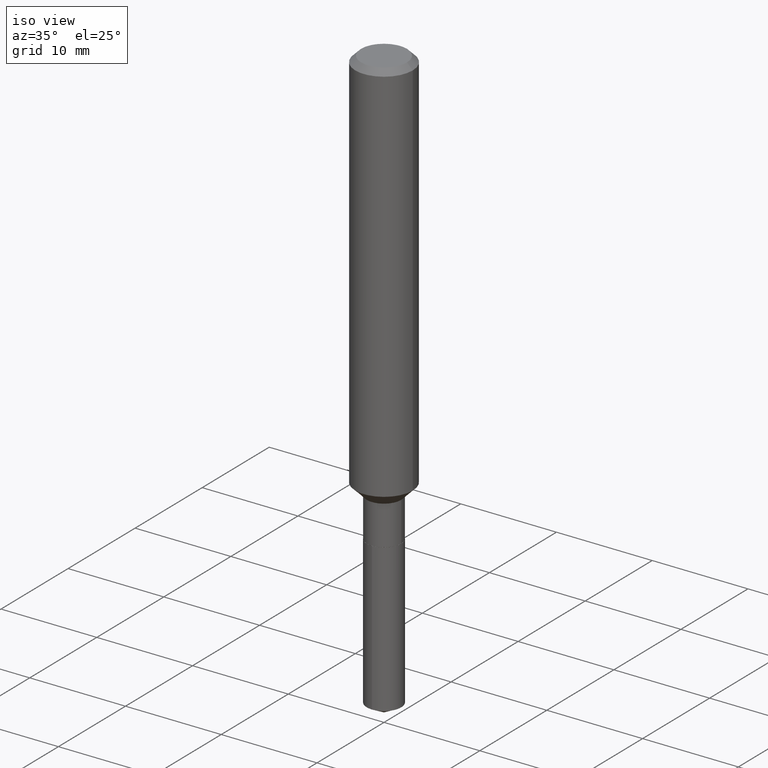
[diagram: clean part render]
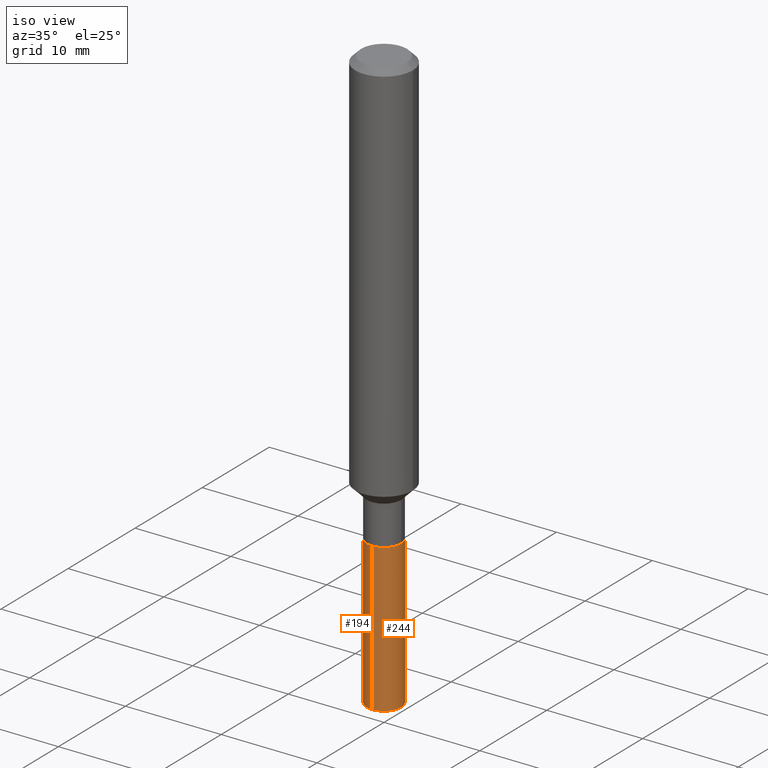
[diagram: same view with one multi-face feature highlighted, each face labeled with its STEP entity id]
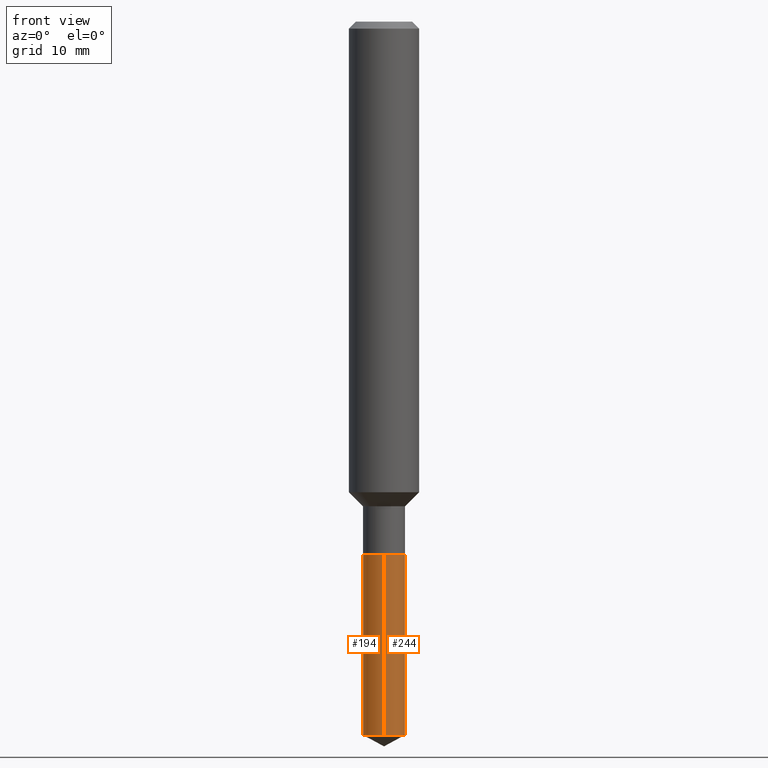
[diagram: same view with one multi-face feature highlighted, each face labeled with its STEP entity id]
A machine part, iso view. The highlighted faces form ONE feature: a constant-radius fillet chain: 2 tangent blend faces with common blend radius 1.7996 mm. The faces share edges in the B-rep.
A second angle (front view) of the same feature is appended — it is thin or edge-on in the first view.
Their STEP definitions:
[1] entity #194 (Cylinder):
#9 = AXIS2_PLACEMENT_3D ( 'NONE', #406, #355, #89 ) ;
#23 = CARTESIAN_POINT ( 'NONE',  ( 5.034195282860748359E-16, 0.07084999999999373743, -1.795200000000000129 ) ) ;
#46 = DIRECTION ( 'NONE',  ( -6.982962677686266711E-15, -1.000000000000000000, 3.855819327684210983E-15 ) ) ;
#66 = EDGE_LOOP ( 'NONE', ( #350, #88, #113, #457 ) ) ;
#85 = EDGE_CURVE ( 'NONE', #164, #326, #477, .T. ) ;
#86 = CARTESIAN_POINT ( 'NONE',  ( -4.947429057140280790E-16, -0.07085000000000626907, -1.795199999999999463 ) ) ;
#88 = ORIENTED_EDGE ( 'NONE', *, *, #129, .T. ) ;
#89 = DIRECTION ( 'NONE',  ( -6.982962677686266711E-15, -1.000000000000000000, 3.855819327684210194E-15 ) ) ;
#106 = VERTEX_POINT ( 'NONE', #300 ) ;
#113 = ORIENTED_EDGE ( 'NONE', *, *, #145, .T. ) ;
#114 = VECTOR ( 'NONE', #269, 39.37007874015748143 ) ;
#129 = EDGE_CURVE ( 'NONE', #106, #364, #411, .T. ) ;
#145 = EDGE_CURVE ( 'NONE', #364, #326, #191, .T. ) ;
#149 = AXIS2_PLACEMENT_3D ( 'NONE', #309, #459, #46 ) ;
#151 = LINE ( 'NONE', #23, #249 ) ;
#155 = DIRECTION ( 'NONE',  ( -6.982962677686265133E-15, -1.000000000000000000, 3.855819327684210983E-15 ) ) ;
#162 = CYLINDRICAL_SURFACE ( 'NONE', #149, 0.07084999999999999631 ) ;
#164 = VERTEX_POINT ( 'NONE', #235 ) ;
#191 = LINE ( 'NONE', #86, #114 ) ;
#194 = ADVANCED_FACE ( 'NONE', ( #195 ), #162, .T. ) ;
#195 = FACE_OUTER_BOUND ( 'NONE', #66, .T. ) ;
#223 = DIRECTION ( 'NONE',  ( -2.434622913591768553E-29, 3.507013274346718220E-15, 1.000000000000000000 ) ) ;
#235 = CARTESIAN_POINT ( 'NONE',  ( 5.034195282860897256E-16, 0.07084999999999372355, -1.795200000000000129 ) ) ;
#249 = VECTOR ( 'NONE', #223, 39.37007874015748143 ) ;
#257 = CARTESIAN_POINT ( 'NONE',  ( 4.390105600863556886E-29, -6.267907299491213327E-15, -1.795199999999999685 ) ) ;
#269 = DIRECTION ( 'NONE',  ( -2.434622913591768553E-29, 3.507013274346718220E-15, 1.000000000000000000 ) ) ;
#300 = CARTESIAN_POINT ( 'NONE',  ( 5.034195282860898242E-16, 0.07084999999999162801, -2.403228386766784297 ) ) ;
#309 = CARTESIAN_POINT ( 'NONE',  ( 4.390105600863556886E-29, -6.267907299491213327E-15, -1.795199999999999685 ) ) ;
#326 = VERTEX_POINT ( 'NONE', #360 ) ;
#328 = EDGE_CURVE ( 'NONE', #106, #164, #151, .T. ) ;
#334 = CARTESIAN_POINT ( 'NONE',  ( -4.947429057140133864E-16, -0.07085000000000843401, -2.403228386766783853 ) ) ;
#350 = ORIENTED_EDGE ( 'NONE', *, *, #328, .F. ) ;
#355 = DIRECTION ( 'NONE',  ( -2.434622913591768553E-29, 3.507013274346718220E-15, 1.000000000000000000 ) ) ;
#360 = CARTESIAN_POINT ( 'NONE',  ( -4.947429057140279804E-16, -0.07085000000000625520, -1.795199999999999463 ) ) ;
#364 = VERTEX_POINT ( 'NONE', #334 ) ;
#402 = DIRECTION ( 'NONE',  ( -2.434622913591768553E-29, 3.507013274346718220E-15, 1.000000000000000000 ) ) ;
#406 = CARTESIAN_POINT ( 'NONE',  ( 5.870425443400208317E-29, -8.400270923061947192E-15, -2.403228386766784297 ) ) ;
#411 = CIRCLE ( 'NONE', #9, 0.07085000000000001019 ) ;
#437 = AXIS2_PLACEMENT_3D ( 'NONE', #257, #402, #155 ) ;
#457 = ORIENTED_EDGE ( 'NONE', *, *, #85, .F. ) ;
#459 = DIRECTION ( 'NONE',  ( -2.434622913591768553E-29, 3.507013274346718220E-15, 1.000000000000000000 ) ) ;
#477 = CIRCLE ( 'NONE', #437, 0.07084999999999999631 ) ;
[2] entity #244 (Cylinder):
#21 = ORIENTED_EDGE ( 'NONE', *, *, #384, .F. ) ;
#23 = CARTESIAN_POINT ( 'NONE',  ( 5.034195282860748359E-16, 0.07084999999999373743, -1.795200000000000129 ) ) ;
#48 = DIRECTION ( 'NONE',  ( -6.982962677686266711E-15, -1.000000000000000000, 3.855819327684210983E-15 ) ) ;
#86 = CARTESIAN_POINT ( 'NONE',  ( -4.947429057140280790E-16, -0.07085000000000626907, -1.795199999999999463 ) ) ;
#105 = ORIENTED_EDGE ( 'NONE', *, *, #145, .F. ) ;
#106 = VERTEX_POINT ( 'NONE', #300 ) ;
#114 = VECTOR ( 'NONE', #269, 39.37007874015748143 ) ;
#121 = DIRECTION ( 'NONE',  ( -2.434622913591768553E-29, 3.507013274346718220E-15, 1.000000000000000000 ) ) ;
#126 = ORIENTED_EDGE ( 'NONE', *, *, #328, .T. ) ;
#127 = DIRECTION ( 'NONE',  ( -6.982962677686265133E-15, -1.000000000000000000, 3.855819327684210983E-15 ) ) ;
#132 = DIRECTION ( 'NONE',  ( -2.434622913591768553E-29, 3.507013274346718220E-15, 1.000000000000000000 ) ) ;
#145 = EDGE_CURVE ( 'NONE', #364, #326, #191, .T. ) ;
#151 = LINE ( 'NONE', #23, #249 ) ;
#157 = DIRECTION ( 'NONE',  ( -6.982962677686266711E-15, -1.000000000000000000, 3.855819327684210194E-15 ) ) ;
#161 = EDGE_LOOP ( 'NONE', ( #307, #126, #21, #105 ) ) ;
#164 = VERTEX_POINT ( 'NONE', #235 ) ;
#172 = DIRECTION ( 'NONE',  ( -2.434622913591768553E-29, 3.507013274346718220E-15, 1.000000000000000000 ) ) ;
#175 = CARTESIAN_POINT ( 'NONE',  ( 4.390105600863556886E-29, -6.267907299491213327E-15, -1.795199999999999685 ) ) ;
#191 = LINE ( 'NONE', #86, #114 ) ;
#198 = EDGE_CURVE ( 'NONE', #364, #106, #258, .T. ) ;
#199 = AXIS2_PLACEMENT_3D ( 'NONE', #470, #172, #127 ) ;
#201 = CARTESIAN_POINT ( 'NONE',  ( 5.870425443400208317E-29, -8.400270923061947192E-15, -2.403228386766784297 ) ) ;
#207 = AXIS2_PLACEMENT_3D ( 'NONE', #201, #121, #157 ) ;
#223 = DIRECTION ( 'NONE',  ( -2.434622913591768553E-29, 3.507013274346718220E-15, 1.000000000000000000 ) ) ;
#235 = CARTESIAN_POINT ( 'NONE',  ( 5.034195282860897256E-16, 0.07084999999999372355, -1.795200000000000129 ) ) ;
#244 = ADVANCED_FACE ( 'NONE', ( #318 ), #320, .T. ) ;
#249 = VECTOR ( 'NONE', #223, 39.37007874015748143 ) ;
#258 = CIRCLE ( 'NONE', #207, 0.07085000000000001019 ) ;
#269 = DIRECTION ( 'NONE',  ( -2.434622913591768553E-29, 3.507013274346718220E-15, 1.000000000000000000 ) ) ;
#296 = AXIS2_PLACEMENT_3D ( 'NONE', #175, #132, #48 ) ;
#300 = CARTESIAN_POINT ( 'NONE',  ( 5.034195282860898242E-16, 0.07084999999999162801, -2.403228386766784297 ) ) ;
#307 = ORIENTED_EDGE ( 'NONE', *, *, #198, .T. ) ;
#318 = FACE_OUTER_BOUND ( 'NONE', #161, .T. ) ;
#320 = CYLINDRICAL_SURFACE ( 'NONE', #296, 0.07084999999999999631 ) ;
#326 = VERTEX_POINT ( 'NONE', #360 ) ;
#328 = EDGE_CURVE ( 'NONE', #106, #164, #151, .T. ) ;
#334 = CARTESIAN_POINT ( 'NONE',  ( -4.947429057140133864E-16, -0.07085000000000843401, -2.403228386766783853 ) ) ;
#360 = CARTESIAN_POINT ( 'NONE',  ( -4.947429057140279804E-16, -0.07085000000000625520, -1.795199999999999463 ) ) ;
#364 = VERTEX_POINT ( 'NONE', #334 ) ;
#384 = EDGE_CURVE ( 'NONE', #326, #164, #390, .T. ) ;
#390 = CIRCLE ( 'NONE', #199, 0.07084999999999999631 ) ;
#470 = CARTESIAN_POINT ( 'NONE',  ( 4.390105600863556886E-29, -6.267907299491213327E-15, -1.795199999999999685 ) ) ;